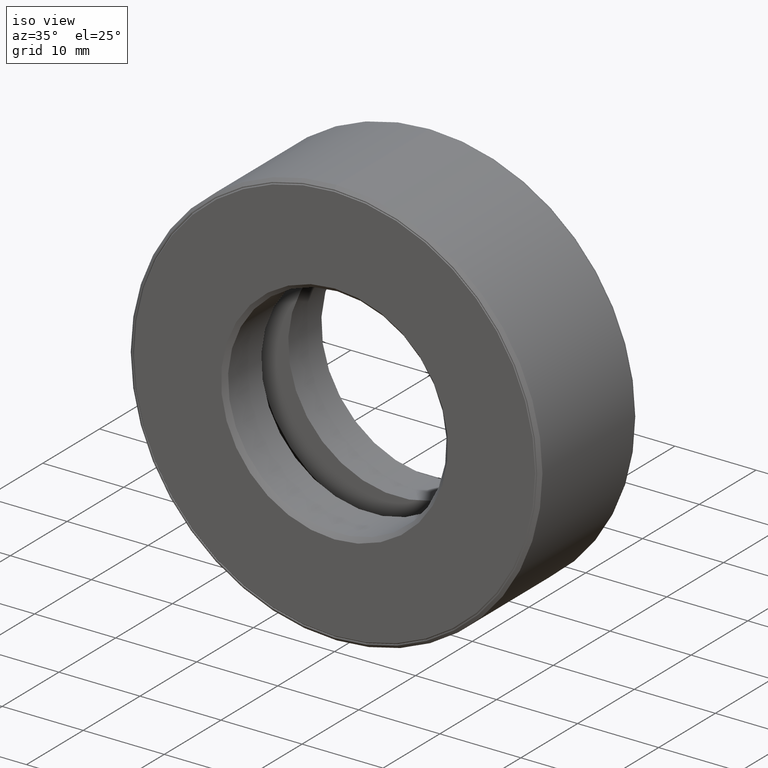
[diagram: clean part render]
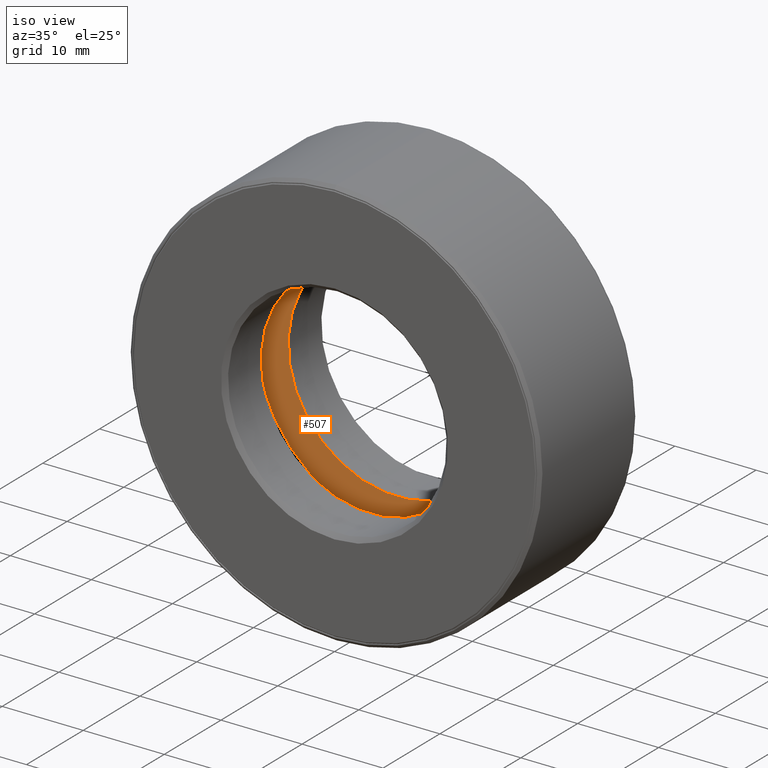
[diagram: same view with one face highlighted and labeled with its STEP entity id]
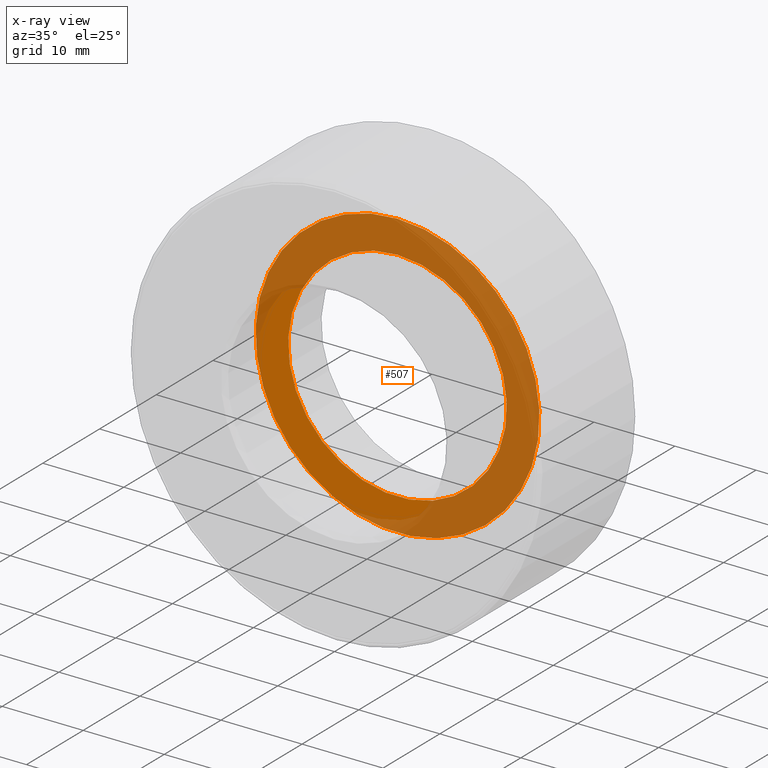
[diagram: x-ray of the same camera — body ghosted, the highlighted face saturated]
A machine part, iso view. The second image highlights one B-rep face of the part: STEP entity #507.
The next image is the same camera in x-ray: the body ghosted, the highlighted face saturated — about 70% of this face is hidden behind the body in this view.
In plain terms, the highlighted planar face has unit normal (0, -1, 0).
Its self-contained STEP definition (entity closure, byte-faithful):
#16 = EDGE_LOOP ( 'NONE', ( #399 ) ) ;
#17 = DIRECTION ( 'NONE',  ( 0.0000000000000000000, -1.000000000000000000, 0.0000000000000000000 ) ) ;
#20 = VERTEX_POINT ( 'NONE', #313 ) ;
#23 = ORIENTED_EDGE ( 'NONE', *, *, #265, .T. ) ;
#56 = CARTESIAN_POINT ( 'NONE',  ( 0.0000000000000000000, 0.4375000000000000000, 0.0000000000000000000 ) ) ;
#67 = CIRCLE ( 'NONE', #480, 0.6897499999999997500 ) ;
#95 = DIRECTION ( 'NONE',  ( -0.0000000000000000000, 1.000000000000000000, -0.0000000000000000000 ) ) ;
#98 = PLANE ( 'NONE',  #157 ) ;
#104 = CARTESIAN_POINT ( 'NONE',  ( 0.0000000000000000000, 0.4375000000000000000, 0.0000000000000000000 ) ) ;
#137 = VERTEX_POINT ( 'NONE', #487 ) ;
#157 = AXIS2_PLACEMENT_3D ( 'NONE', #104, #17, #200 ) ;
#163 = FACE_OUTER_BOUND ( 'NONE', #16, .T. ) ;
#200 = DIRECTION ( 'NONE',  ( 0.0000000000000000000, -0.0000000000000000000, -1.000000000000000000 ) ) ;
#265 = EDGE_CURVE ( 'NONE', #20, #20, #469, .T. ) ;
#299 = CARTESIAN_POINT ( 'NONE',  ( 0.0000000000000000000, 0.4375000000000000000, 0.0000000000000000000 ) ) ;
#313 = CARTESIAN_POINT ( 'NONE',  ( 0.0000000000000000000, 0.4375000000000000000, 0.5312500000000000000 ) ) ;
#337 = DIRECTION ( 'NONE',  ( 0.0000000000000000000, 0.0000000000000000000, 1.000000000000000000 ) ) ;
#399 = ORIENTED_EDGE ( 'NONE', *, *, #494, .F. ) ;
#421 = AXIS2_PLACEMENT_3D ( 'NONE', #56, #95, #337 ) ;
#425 = DIRECTION ( 'NONE',  ( -0.0000000000000000000, 1.000000000000000000, -0.0000000000000000000 ) ) ;
#430 = DIRECTION ( 'NONE',  ( 0.0000000000000000000, 0.0000000000000000000, 1.000000000000000000 ) ) ;
#461 = FACE_BOUND ( 'NONE', #574, .T. ) ;
#469 = CIRCLE ( 'NONE', #421, 0.5312500000000000000 ) ;
#480 = AXIS2_PLACEMENT_3D ( 'NONE', #299, #425, #430 ) ;
#487 = CARTESIAN_POINT ( 'NONE',  ( 0.0000000000000000000, 0.4375000000000000000, 0.6897499999999997500 ) ) ;
#494 = EDGE_CURVE ( 'NONE', #137, #137, #67, .T. ) ;
#507 = ADVANCED_FACE ( 'NONE', ( #461, #163 ), #98, .T. ) ;
#574 = EDGE_LOOP ( 'NONE', ( #23 ) ) ;